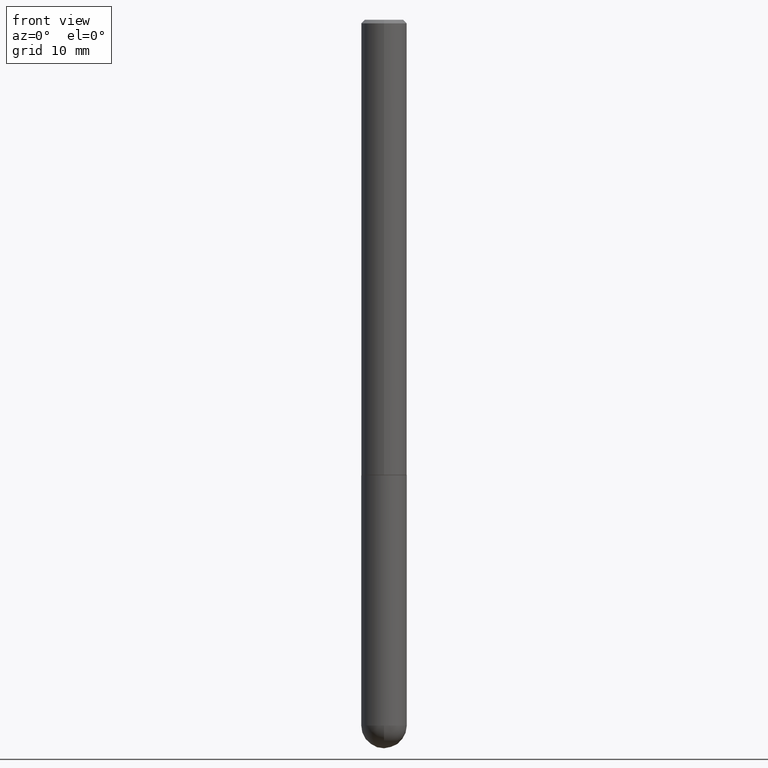
[diagram: clean part render]
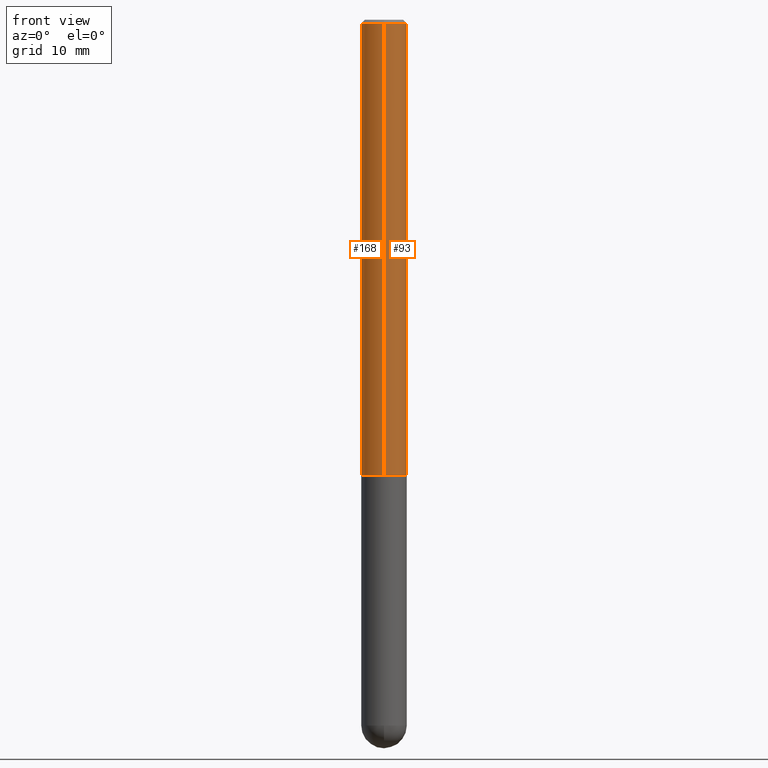
[diagram: same view with one multi-face feature highlighted, each face labeled with its STEP entity id]
A machine part, front view. The highlighted faces form ONE feature: a constant-radius fillet chain: 2 tangent blend faces with common blend radius 3.175 mm. The faces share edges in the B-rep.
Their STEP definitions:
[1] entity #93 (Cylinder):
#2 = VERTEX_POINT ( 'NONE', #313 ) ;
#4 = DIRECTION ( 'NONE',  ( -2.445231133379233042E-29, 3.491821699828695402E-15, 1.000000000000000000 ) ) ;
#6 = EDGE_CURVE ( 'NONE', #157, #98, #39, .T. ) ;
#18 = LINE ( 'NONE', #347, #285 ) ;
#23 = DIRECTION ( 'NONE',  ( -2.445231133379233042E-29, 3.491821699828695796E-15, 1.000000000000000000 ) ) ;
#27 = AXIS2_PLACEMENT_3D ( 'NONE', #235, #23, #330 ) ;
#30 = EDGE_CURVE ( 'NONE', #2, #62, #18, .T. ) ;
#37 = ORIENTED_EDGE ( 'NONE', *, *, #348, .F. ) ;
#39 = LINE ( 'NONE', #164, #365 ) ;
#51 = DIRECTION ( 'NONE',  ( -2.445231133379233042E-29, 3.491821699828695796E-15, 1.000000000000000000 ) ) ;
#62 = VERTEX_POINT ( 'NONE', #74 ) ;
#74 = CARTESIAN_POINT ( 'NONE',  ( 8.728703347107836346E-16, 0.1249999999999999167, -0.02000000000000046185 ) ) ;
#88 = EDGE_LOOP ( 'NONE', ( #361, #273, #37, #341 ) ) ;
#93 = ADVANCED_FACE ( 'NONE', ( #317 ), #295, .T. ) ;
#98 = VERTEX_POINT ( 'NONE', #292 ) ;
#106 = CARTESIAN_POINT ( 'NONE',  ( 0.000000000000000000, 0.000000000000000000, 0.000000000000000000 ) ) ;
#155 = CIRCLE ( 'NONE', #382, 0.1250000000000002776 ) ;
#157 = VERTEX_POINT ( 'NONE', #166 ) ;
#164 = CARTESIAN_POINT ( 'NONE',  ( -8.728703347107842263E-16, -0.1250000000000001388, 4.364777124785874183E-16 ) ) ;
#166 = CARTESIAN_POINT ( 'NONE',  ( -8.728703347107241743E-16, -0.1250000000000090206, -2.498999999999999666 ) ) ;
#173 = DIRECTION ( 'NONE',  ( -6.982962677686266711E-15, -1.000000000000000000, 4.370956789862811683E-15 ) ) ;
#174 = CARTESIAN_POINT ( 'NONE',  ( 6.110632602314704135E-29, -8.726062427871912019E-15, -2.499000000000000110 ) ) ;
#204 = DIRECTION ( 'NONE',  ( -6.982962677686265922E-15, -1.000000000000000000, 3.491821699828695402E-15 ) ) ;
#229 = CIRCLE ( 'NONE', #27, 0.1249999999999999861 ) ;
#235 = CARTESIAN_POINT ( 'NONE',  ( 4.890462266758471899E-31, -6.983643399657399974E-17, -0.02000000000000002470 ) ) ;
#273 = ORIENTED_EDGE ( 'NONE', *, *, #30, .T. ) ;
#285 = VECTOR ( 'NONE', #320, 39.37007874015748143 ) ;
#292 = CARTESIAN_POINT ( 'NONE',  ( -8.575622497214407550E-16, -0.1250000000000000555, -0.01999999999999959102 ) ) ;
#295 = CYLINDRICAL_SURFACE ( 'NONE', #366, 0.1250000000000001388 ) ;
#313 = CARTESIAN_POINT ( 'NONE',  ( 8.881784197001571812E-16, 0.1249999999999915484, -2.499000000000000998 ) ) ;
#317 = FACE_OUTER_BOUND ( 'NONE', #88, .T. ) ;
#320 = DIRECTION ( 'NONE',  ( -2.445231133379233042E-29, 3.491821699828695402E-15, 1.000000000000000000 ) ) ;
#330 = DIRECTION ( 'NONE',  ( -6.982962677686265922E-15, -1.000000000000000000, 3.483106191921935949E-15 ) ) ;
#339 = EDGE_CURVE ( 'NONE', #157, #2, #155, .T. ) ;
#341 = ORIENTED_EDGE ( 'NONE', *, *, #6, .F. ) ;
#347 = CARTESIAN_POINT ( 'NONE',  ( 8.881784197001260212E-16, 0.1250000000000001388, -4.364777124785874183E-16 ) ) ;
#348 = EDGE_CURVE ( 'NONE', #98, #62, #229, .T. ) ;
#361 = ORIENTED_EDGE ( 'NONE', *, *, #339, .T. ) ;
#365 = VECTOR ( 'NONE', #4, 39.37007874015748143 ) ;
#366 = AXIS2_PLACEMENT_3D ( 'NONE', #106, #391, #204 ) ;
#382 = AXIS2_PLACEMENT_3D ( 'NONE', #174, #51, #173 ) ;
#391 = DIRECTION ( 'NONE',  ( -2.445231133379233042E-29, 3.491821699828695796E-15, 1.000000000000000000 ) ) ;
[2] entity #168 (Cylinder):
#2 = VERTEX_POINT ( 'NONE', #313 ) ;
#4 = DIRECTION ( 'NONE',  ( -2.445231133379233042E-29, 3.491821699828695402E-15, 1.000000000000000000 ) ) ;
#6 = EDGE_CURVE ( 'NONE', #157, #98, #39, .T. ) ;
#14 = DIRECTION ( 'NONE',  ( -2.445231133379233042E-29, 3.491821699828695796E-15, 1.000000000000000000 ) ) ;
#16 = AXIS2_PLACEMENT_3D ( 'NONE', #388, #107, #79 ) ;
#18 = LINE ( 'NONE', #347, #285 ) ;
#30 = EDGE_CURVE ( 'NONE', #2, #62, #18, .T. ) ;
#32 = ORIENTED_EDGE ( 'NONE', *, *, #6, .T. ) ;
#39 = LINE ( 'NONE', #164, #365 ) ;
#54 = ORIENTED_EDGE ( 'NONE', *, *, #30, .F. ) ;
#55 = CIRCLE ( 'NONE', #16, 0.1249999999999999861 ) ;
#58 = CARTESIAN_POINT ( 'NONE',  ( 6.110632602314704135E-29, -8.726062427871912019E-15, -2.499000000000000110 ) ) ;
#62 = VERTEX_POINT ( 'NONE', #74 ) ;
#74 = CARTESIAN_POINT ( 'NONE',  ( 8.728703347107836346E-16, 0.1249999999999999167, -0.02000000000000046185 ) ) ;
#79 = DIRECTION ( 'NONE',  ( -6.982962677686265922E-15, -1.000000000000000000, 3.483106191921935949E-15 ) ) ;
#85 = DIRECTION ( 'NONE',  ( -6.982962677686266711E-15, -1.000000000000000000, 4.370956789862811683E-15 ) ) ;
#98 = VERTEX_POINT ( 'NONE', #292 ) ;
#107 = DIRECTION ( 'NONE',  ( -2.445231133379233042E-29, 3.491821699828695796E-15, 1.000000000000000000 ) ) ;
#117 = ORIENTED_EDGE ( 'NONE', *, *, #165, .F. ) ;
#121 = AXIS2_PLACEMENT_3D ( 'NONE', #263, #14, #319 ) ;
#126 = ORIENTED_EDGE ( 'NONE', *, *, #359, .T. ) ;
#135 = AXIS2_PLACEMENT_3D ( 'NONE', #58, #358, #85 ) ;
#157 = VERTEX_POINT ( 'NONE', #166 ) ;
#164 = CARTESIAN_POINT ( 'NONE',  ( -8.728703347107842263E-16, -0.1250000000000001388, 4.364777124785874183E-16 ) ) ;
#165 = EDGE_CURVE ( 'NONE', #62, #98, #55, .T. ) ;
#166 = CARTESIAN_POINT ( 'NONE',  ( -8.728703347107241743E-16, -0.1250000000000090206, -2.498999999999999666 ) ) ;
#168 = ADVANCED_FACE ( 'NONE', ( #201 ), #203, .T. ) ;
#201 = FACE_OUTER_BOUND ( 'NONE', #411, .T. ) ;
#203 = CYLINDRICAL_SURFACE ( 'NONE', #121, 0.1250000000000001388 ) ;
#257 = CIRCLE ( 'NONE', #135, 0.1250000000000002776 ) ;
#263 = CARTESIAN_POINT ( 'NONE',  ( 0.000000000000000000, 0.000000000000000000, 0.000000000000000000 ) ) ;
#285 = VECTOR ( 'NONE', #320, 39.37007874015748143 ) ;
#292 = CARTESIAN_POINT ( 'NONE',  ( -8.575622497214407550E-16, -0.1250000000000000555, -0.01999999999999959102 ) ) ;
#313 = CARTESIAN_POINT ( 'NONE',  ( 8.881784197001571812E-16, 0.1249999999999915484, -2.499000000000000998 ) ) ;
#319 = DIRECTION ( 'NONE',  ( -6.982962677686265922E-15, -1.000000000000000000, 3.491821699828695402E-15 ) ) ;
#320 = DIRECTION ( 'NONE',  ( -2.445231133379233042E-29, 3.491821699828695402E-15, 1.000000000000000000 ) ) ;
#347 = CARTESIAN_POINT ( 'NONE',  ( 8.881784197001260212E-16, 0.1250000000000001388, -4.364777124785874183E-16 ) ) ;
#358 = DIRECTION ( 'NONE',  ( -2.445231133379233042E-29, 3.491821699828695796E-15, 1.000000000000000000 ) ) ;
#359 = EDGE_CURVE ( 'NONE', #2, #157, #257, .T. ) ;
#365 = VECTOR ( 'NONE', #4, 39.37007874015748143 ) ;
#388 = CARTESIAN_POINT ( 'NONE',  ( 4.890462266758471899E-31, -6.983643399657399974E-17, -0.02000000000000002470 ) ) ;
#411 = EDGE_LOOP ( 'NONE', ( #54, #126, #32, #117 ) ) ;